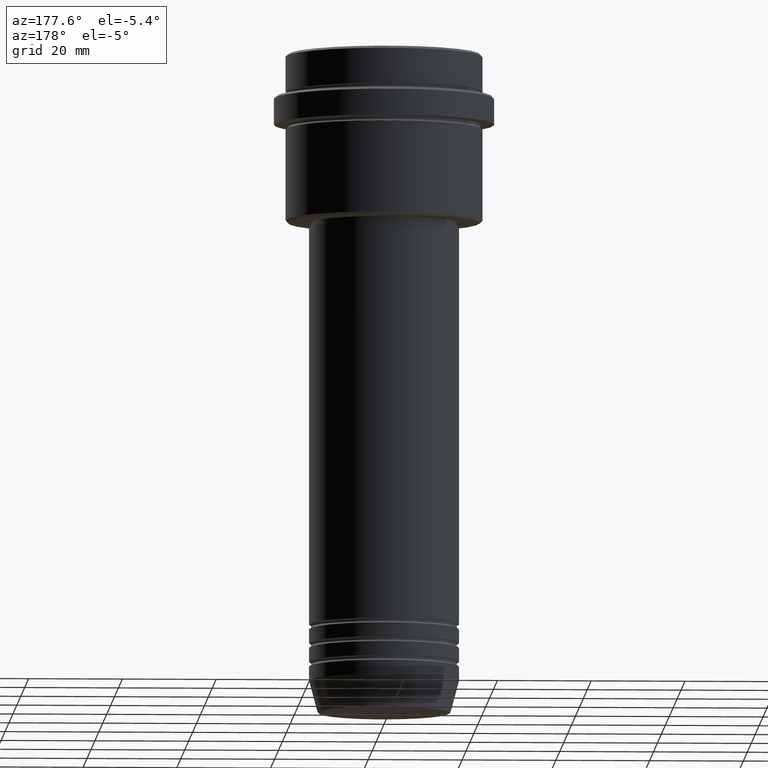
[diagram: clean part render]
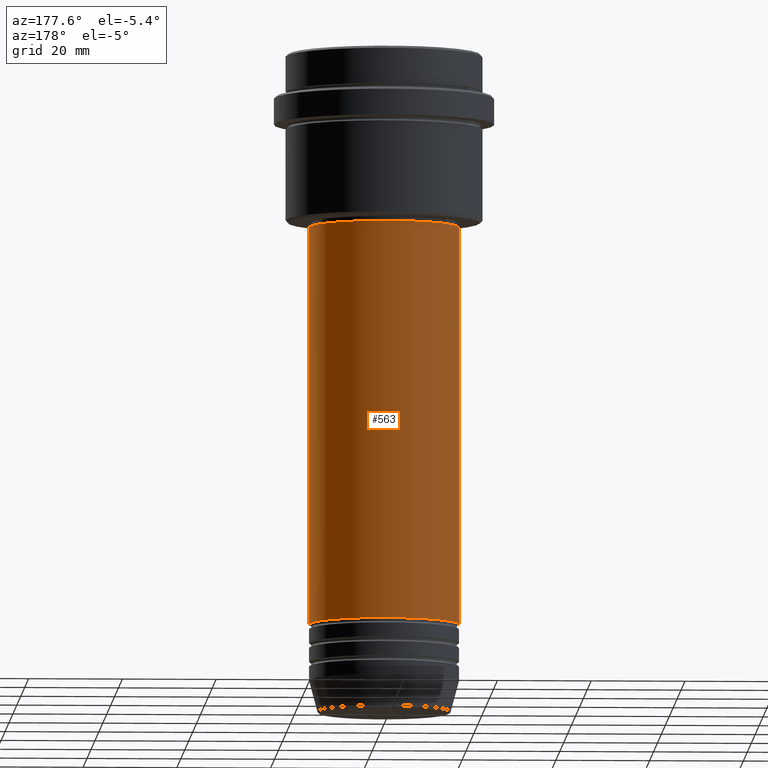
[diagram: same view with one face highlighted and labeled with its STEP entity id]
A machine part, auxiliary view. The second image highlights one B-rep face of the part: STEP entity #563.
In plain terms, the highlighted cylindrical surface (partial cylindrical patch) has radius 16 mm, axis along (-0, -0, 1).
Its self-contained STEP definition (entity closure, byte-faithful):
#28 = CARTESIAN_POINT ( 'NONE',  ( 16.00000000000000355, 0.000000000000000000, -36.99999999999999289 ) ) ;
#95 = CARTESIAN_POINT ( 'NONE',  ( 16.00000000000000000, 0.000000000000000000, -121.9999999999998721 ) ) ;
#114 = CARTESIAN_POINT ( 'NONE',  ( 0.000000000000000000, 0.000000000000000000, -121.9999999999998721 ) ) ;
#132 = FACE_OUTER_BOUND ( 'NONE', #697, .T. ) ;
#178 = CIRCLE ( 'NONE', #1242, 16.00000000000000355 ) ;
#236 = VERTEX_POINT ( 'NONE', #651 ) ;
#263 = DIRECTION ( 'NONE',  ( -0.000000000000000000, -0.000000000000000000, 1.000000000000000000 ) ) ;
#272 = CARTESIAN_POINT ( 'NONE',  ( -16.00000000000000355, 1.959434878635765526E-15, -36.99999999999999289 ) ) ;
#318 = EDGE_CURVE ( 'NONE', #778, #878, #894, .T. ) ;
#325 = AXIS2_PLACEMENT_3D ( 'NONE', #114, #565, #674 ) ;
#333 = CARTESIAN_POINT ( 'NONE',  ( 0.000000000000000000, 0.000000000000000000, -36.99999999999999289 ) ) ;
#378 = EDGE_CURVE ( 'NONE', #778, #236, #828, .T. ) ;
#381 = LINE ( 'NONE', #1260, #461 ) ;
#461 = VECTOR ( 'NONE', #727, 1000.000000000000000 ) ;
#466 = ORIENTED_EDGE ( 'NONE', *, *, #865, .F. ) ;
#563 = ADVANCED_FACE ( 'NONE', ( #132 ), #812, .T. ) ;
#565 = DIRECTION ( 'NONE',  ( -0.000000000000000000, -0.000000000000000000, 1.000000000000000000 ) ) ;
#581 = DIRECTION ( 'NONE',  ( 1.000000000000000000, 0.000000000000000000, 0.000000000000000000 ) ) ;
#651 = CARTESIAN_POINT ( 'NONE',  ( -16.00000000000000000, 1.959434878635765131E-15, -121.9999999999998721 ) ) ;
#674 = DIRECTION ( 'NONE',  ( 1.000000000000000000, 0.000000000000000000, 0.000000000000000000 ) ) ;
#684 = VECTOR ( 'NONE', #263, 1000.000000000000000 ) ;
#697 = EDGE_LOOP ( 'NONE', ( #987, #1077, #466, #838 ) ) ;
#727 = DIRECTION ( 'NONE',  ( -0.000000000000000000, -0.000000000000000000, 1.000000000000000000 ) ) ;
#737 = CARTESIAN_POINT ( 'NONE',  ( 0.000000000000000000, 0.000000000000000000, 0.000000000000000000 ) ) ;
#778 = VERTEX_POINT ( 'NONE', #95 ) ;
#785 = DIRECTION ( 'NONE',  ( 1.000000000000000000, 0.000000000000000000, 0.000000000000000000 ) ) ;
#812 = CYLINDRICAL_SURFACE ( 'NONE', #1308, 16.00000000000000000 ) ;
#828 = CIRCLE ( 'NONE', #325, 16.00000000000000000 ) ;
#838 = ORIENTED_EDGE ( 'NONE', *, *, #318, .F. ) ;
#865 = EDGE_CURVE ( 'NONE', #878, #955, #178, .T. ) ;
#878 = VERTEX_POINT ( 'NONE', #28 ) ;
#894 = LINE ( 'NONE', #1118, #684 ) ;
#955 = VERTEX_POINT ( 'NONE', #272 ) ;
#974 = EDGE_CURVE ( 'NONE', #236, #955, #381, .T. ) ;
#987 = ORIENTED_EDGE ( 'NONE', *, *, #378, .T. ) ;
#1077 = ORIENTED_EDGE ( 'NONE', *, *, #974, .T. ) ;
#1104 = DIRECTION ( 'NONE',  ( -0.000000000000000000, -0.000000000000000000, 1.000000000000000000 ) ) ;
#1118 = CARTESIAN_POINT ( 'NONE',  ( 16.00000000000000000, 0.000000000000000000, 0.000000000000000000 ) ) ;
#1123 = DIRECTION ( 'NONE',  ( -0.000000000000000000, -0.000000000000000000, 1.000000000000000000 ) ) ;
#1242 = AXIS2_PLACEMENT_3D ( 'NONE', #333, #1104, #785 ) ;
#1260 = CARTESIAN_POINT ( 'NONE',  ( -16.00000000000000000, 1.959434878635765131E-15, 0.000000000000000000 ) ) ;
#1308 = AXIS2_PLACEMENT_3D ( 'NONE', #737, #1123, #581 ) ;